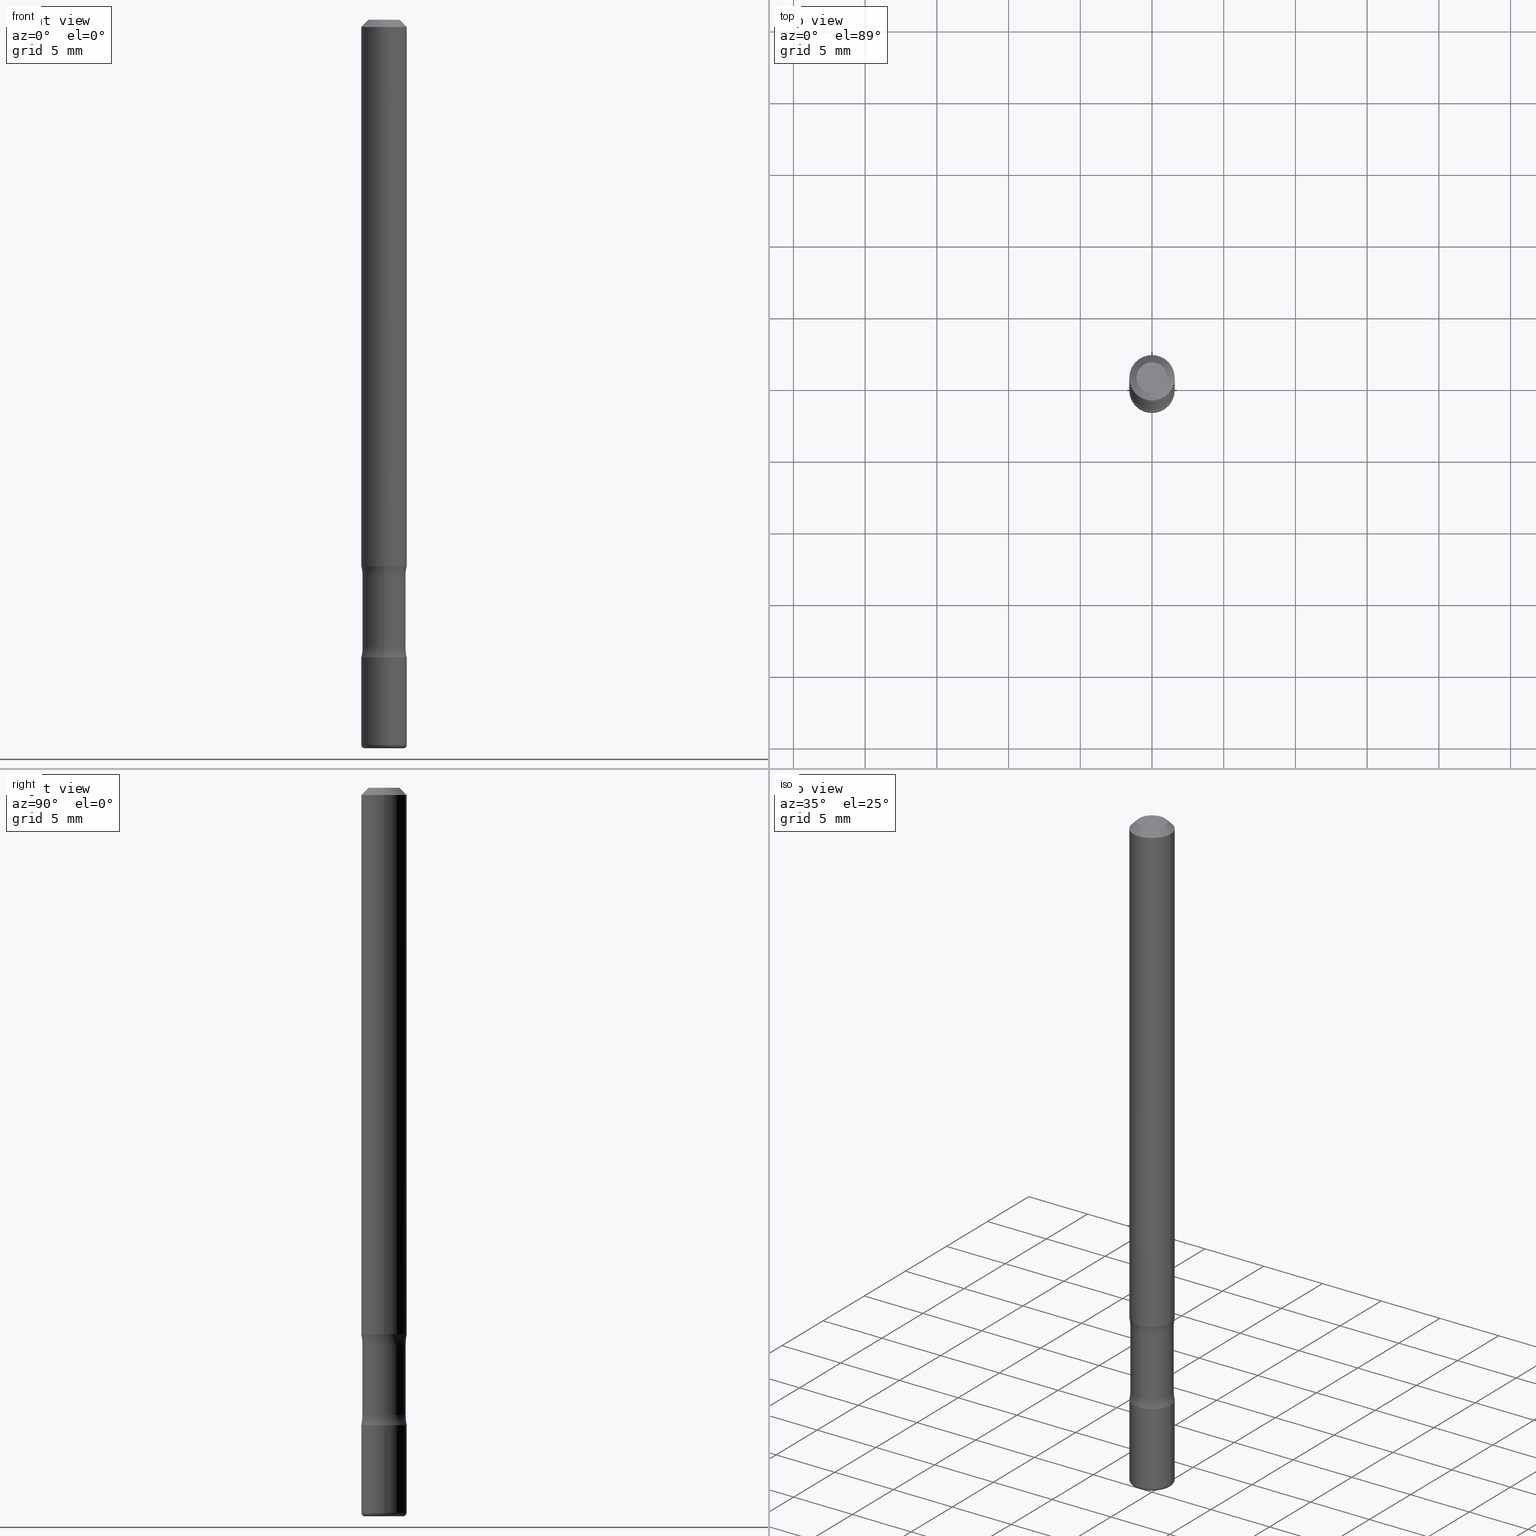
[diagram: canonical four-view strip — front | top / right | iso, engineering-drawing reading convention]
A machine part, canonical four-view strip (front | top / right | iso — engineering-drawing reading convention). The complete STEP part file that produces these views, byte-faithful:
ISO-10303-21;
HEADER;
FILE_DESCRIPTION (( 'STEP AP203' ),
    '1' );
FILE_NAME ('37990.STEP',
    '2024-03-02T02:09:02',
    ( '' ),
    ( '' ),
    'SwSTEP 2.0',
    'SolidWorks 2023',
    '' );
FILE_SCHEMA (( 'CONFIG_CONTROL_DESIGN' ));
ENDSEC;

DATA;
#1 = ORIENTED_EDGE ( 'NONE', *, *, #447, .T. ) ;
#2 = CARTESIAN_POINT ( 'NONE',  ( 2.967759138016698062E-16, 0.04250000000000050265, -1.761332880864881203E-16 ) ) ;
#3 = ORIENTED_EDGE ( 'NONE', *, *, #40, .T. ) ;
#4 = ADVANCED_FACE ( 'NONE', ( #370 ), #246, .F. ) ;
#5 = PERSON_AND_ORGANIZATION ( #188, #544 ) ;
#6 = ORIENTED_EDGE ( 'NONE', *, *, #367, .F. ) ;
#7 = EDGE_CURVE ( 'NONE', #475, #29, #316, .T. ) ;
#8 = LINE ( 'NONE', #176, #238 ) ;
#9 = AXIS2_PLACEMENT_3D ( 'NONE', #2, #512, #173 ) ;
#10 = DIRECTION ( 'NONE',  ( -6.982962677686265922E-15, -1.000000000000000000, 5.846345719468729014E-15 ) ) ;
#11 = DIRECTION ( 'NONE',  ( -2.445468806185136597E-29, 3.491481338843145583E-15, 1.000000000000000000 ) ) ;
#12 = EDGE_CURVE ( 'NONE', #294, #48, #262, .T. ) ;
#13 = EDGE_CURVE ( 'NONE', #41, #553, #463, .T. ) ;
#14 = LINE ( 'NONE', #351, #376 ) ;
#15 = CARTESIAN_POINT ( 'NONE',  ( 4.890937612370272073E-29, -6.982962677686288799E-15, -1.999999999999999334 ) ) ;
#16 = DIRECTION ( 'NONE',  ( 1.000000000000000000, 0.000000000000000000, 0.000000000000000000 ) ) ;
#17 = CARTESIAN_POINT ( 'NONE',  ( 0.06250000000000076328, -4.364351673553969942E-16, 3.047610484872497355E-30 ) ) ;
#18 = EDGE_CURVE ( 'NONE', #235, #419, #152, .T. ) ;
#19 = VERTEX_POINT ( 'NONE', #455 ) ;
#20 = DIRECTION ( 'NONE',  ( 6.982962677686266711E-15, 1.000000000000000000, -4.601007147224048087E-15 ) ) ;
#21 = PERSON_AND_ORGANIZATION ( #188, #544 ) ;
#22 = VERTEX_POINT ( 'NONE', #33 ) ;
#23 = DIRECTION ( 'NONE',  ( 8.010757980930134339E-30, -5.846345719468729014E-15, -1.000000000000000000 ) ) ;
#24 = ADVANCED_FACE ( 'NONE', ( #515 ), #184, .T. ) ;
#25 = EDGE_LOOP ( 'NONE', ( #282, #6 ) ) ;
#26 = CC_DESIGN_APPROVAL ( #63, ( #539 ) ) ;
#27 = CARTESIAN_POINT ( 'NONE',  ( 1.357006838635785746E-45, -1.937446121494581442E-31, -5.549066237130534971E-17 ) ) ;
#28 = EDGE_CURVE ( 'NONE', #405, #519, #35, .T. ) ;
#29 = VERTEX_POINT ( 'NONE', #372 ) ;
#30 = EDGE_LOOP ( 'NONE', ( #84, #331, #468, #496 ) ) ;
#31 = APPLICATION_CONTEXT ( 'configuration controlled 3d designs of mechanical parts and assemblies' ) ;
#32 = ORIENTED_EDGE ( 'NONE', *, *, #264, .T. ) ;
#33 = CARTESIAN_POINT ( 'NONE',  ( -0.06250000000000062450, -6.084980893786609222E-15, -1.749999999999999112 ) ) ;
#34 = CARTESIAN_POINT ( 'NONE',  ( 4.079301461300732393E-29, -4.648505913108318079E-15, -1.499999999999998668 ) ) ;
#35 = CIRCLE ( 'NONE', #364, 0.01000000000000085022 ) ;
#36 = VECTOR ( 'NONE', #411, 39.37007874015748143 ) ;
#37 = ORIENTED_EDGE ( 'NONE', *, *, #476, .T. ) ;
#38 = DIRECTION ( 'NONE',  ( 6.982962677686265922E-15, 1.000000000000000000, -5.846345719468729014E-15 ) ) ;
#39 = DATE_AND_TIME ( #302, #415 ) ;
#40 = EDGE_CURVE ( 'NONE', #508, #519, #170, .T. ) ;
#41 = VERTEX_POINT ( 'NONE', #506 ) ;
#42 = COORDINATED_UNIVERSAL_TIME_OFFSET ( 5, 0, .BEHIND. ) ;
#43 = ADVANCED_FACE ( 'NONE', ( #320 ), #241, .T. ) ;
#44 = FACE_OUTER_BOUND ( 'NONE', #335, .T. ) ;
#45 = AXIS2_PLACEMENT_3D ( 'NONE', #179, #488, #401 ) ;
#46 = LOCAL_TIME ( 21, 9, 2.000000000000000000, #224 ) ;
#47 = DIRECTION ( 'NONE',  ( 6.982962677686267499E-15, 1.000000000000000000, -4.370956789862777762E-15 ) ) ;
#48 = VERTEX_POINT ( 'NONE', #288 ) ;
#49 = DIRECTION ( 'NONE',  ( 0.000000000000000000, 0.000000000000000000, 1.000000000000000000 ) ) ;
#50 = ADVANCED_FACE ( 'NONE', ( #163 ), #253, .T. ) ;
#51 = FACE_OUTER_BOUND ( 'NONE', #546, .T. ) ;
#52 = DIRECTION ( 'NONE',  ( 1.000000000000000000, -6.982962677686266711E-15, 4.876176775795936353E-29 ) ) ;
#53 = CLOSED_SHELL ( 'NONE', ( #391, #4, #507, #461, #427, #200, #321, #495 ) ) ;
#54 = AXIS2_PLACEMENT_3D ( 'NONE', #283, #157, #325 ) ;
#55 = APPROVAL_PERSON_ORGANIZATION ( #21, #63, #106 ) ;
#56 = FACE_OUTER_BOUND ( 'NONE', #458, .T. ) ;
#57 = CYLINDRICAL_SURFACE ( 'NONE', #312, 0.05937499999999967110 ) ;
#58 = CARTESIAN_POINT ( 'NONE',  ( 0.06250000000000073552, -4.364351673553967477E-16, 3.047610484872495604E-30 ) ) ;
#59 = LOCAL_TIME ( 21, 9, 2.000000000000000000, #62 ) ;
#60 = CARTESIAN_POINT ( 'NONE',  ( 0.000000000000000000, 0.000000000000000000, 0.000000000000000000 ) ) ;
#61 = CARTESIAN_POINT ( 'NONE',  ( 4.079301461300732393E-29, -4.648505913108318079E-15, -1.499999999999998668 ) ) ;
#62 = COORDINATED_UNIVERSAL_TIME_OFFSET ( 5, 0, .BEHIND. ) ;
#63 = APPROVAL ( #494, 'UNSPECIFIED' ) ;
#64 = CIRCLE ( 'NONE', #199, 0.06250000000000090206 ) ;
#65 = ORIENTED_EDGE ( 'NONE', *, *, #160, .T. ) ;
#66 = CARTESIAN_POINT ( 'NONE',  ( -2.417785108228764368E-28, -4.861112258114085426E-14, -1.999999999999998890 ) ) ;
#67 = ORIENTED_EDGE ( 'NONE', *, *, #138, .F. ) ;
#68 = DIRECTION ( 'NONE',  ( 8.010757980930134339E-30, -5.846345719468729014E-15, -1.000000000000000000 ) ) ;
#69 = DIRECTION ( 'NONE',  ( 1.000000000000000000, -6.982962677686271444E-15, 0.000000000000000000 ) ) ;
#70 = LINE ( 'NONE', #17, #280 ) ;
#71 = DIRECTION ( 'NONE',  ( 8.010757980930134339E-30, -5.846345719468729014E-15, -1.000000000000000000 ) ) ;
#72 = EDGE_CURVE ( 'NONE', #453, #405, #510, .T. ) ;
#73 = AXIS2_PLACEMENT_3D ( 'NONE', #60, #11, #52 ) ;
#74 = ORIENTED_EDGE ( 'NONE', *, *, #328, .T. ) ;
#75 = VECTOR ( 'NONE', #257, 39.37007874015748143 ) ;
#76 = SECURITY_CLASSIFICATION ( '', '', #175 ) ;
#77 = ORIENTED_EDGE ( 'NONE', *, *, #7, .F. ) ;
#78 = DIRECTION ( 'NONE',  ( 6.982962677686265922E-15, 1.000000000000000000, -4.370956789862822727E-15 ) ) ;
#79 = SHAPE_DEFINITION_REPRESENTATION ( #290, #429 ) ;
#80 = LINE ( 'NONE', #334, #268 ) ;
#81 = CARTESIAN_POINT ( 'NONE',  ( -0.06250000000000111022, -6.503958654447783489E-15, -1.989999999999998215 ) ) ;
#82 = DIRECTION ( 'NONE',  ( 1.000000000000000000, -6.982962677686265922E-15, 4.876176775795935793E-29 ) ) ;
#83 = AXIS2_PLACEMENT_3D ( 'NONE', #15, #181, #342 ) ;
#84 = ORIENTED_EDGE ( 'NONE', *, *, #264, .F. ) ;
#85 = MANIFOLD_SOLID_BREP ( 'Body-Move/Copy2[4]', #53 ) ;
#86 = CARTESIAN_POINT ( 'NONE',  ( 1.357006838635785746E-45, -1.937446121494581442E-31, -5.549066237130534971E-17 ) ) ;
#87 = DIRECTION ( 'NONE',  ( -2.445468806185136597E-29, 3.491481338843145583E-15, 1.000000000000000000 ) ) ;
#88 = TOROIDAL_SURFACE ( 'NONE', #473, 0.05250000000000046296, 0.01000000000000085022 ) ;
#89 = AXIS2_PLACEMENT_3D ( 'NONE', #61, #346, #534 ) ;
#90 = CARTESIAN_POINT ( 'NONE',  ( 0.000000000000000000, 0.000000000000000000, 0.000000000000000000 ) ) ;
#91 = ADVANCED_FACE ( 'NONE', ( #212 ), #88, .T. ) ;
#92 = LINE ( 'NONE', #261, #123 ) ;
#93 = CYLINDRICAL_SURFACE ( 'NONE', #209, 0.06250000000000073552 ) ;
#94 = DIRECTION ( 'NONE',  ( 0.7071067811865471286, -7.319954787623254468E-15, -0.7071067811865479058 ) ) ;
#95 = PERSON_AND_ORGANIZATION_ROLE ( 'classification_officer' ) ;
#96 = DIRECTION ( 'NONE',  ( 8.010757980930134339E-30, -5.846345719468729014E-15, -1.000000000000000000 ) ) ;
#97 = CARTESIAN_POINT ( 'NONE',  ( -4.287811248606790116E-16, -0.06250000000000452416, -1.499999999999998446 ) ) ;
#98 = AXIS2_PLACEMENT_3D ( 'NONE', #108, #276, #69 ) ;
#99 = AXIS2_PLACEMENT_3D ( 'NONE', #90, #49, #16 ) ;
#100 = ORIENTED_EDGE ( 'NONE', *, *, #352, .F. ) ;
#101 = CLOSED_SHELL ( 'NONE', ( #355, #174, #182, #91, #207, #109 ) ) ;
#102 = AXIS2_PLACEMENT_3D ( 'NONE', #460, #71, #416 ) ;
#103 = ORIENTED_EDGE ( 'NONE', *, *, #314, .F. ) ;
#104 = DIRECTION ( 'NONE',  ( 6.982962677686265922E-15, 1.000000000000000000, -5.846345719468729014E-15 ) ) ;
#105 = CARTESIAN_POINT ( 'NONE',  ( 0.05250000000000046296, -7.349568218264821903E-15, -1.999999999999999334 ) ) ;
#106 = APPROVAL_ROLE ( '' ) ;
#107 = ORIENTED_EDGE ( 'NONE', *, *, #265, .F. ) ;
#108 = CARTESIAN_POINT ( 'NONE',  ( 4.279570410823987363E-29, -6.110092342975501516E-15, -1.749999999999999112 ) ) ;
#109 = ADVANCED_FACE ( 'NONE', ( #171 ), #322, .F. ) ;
#110 = CARTESIAN_POINT ( 'NONE',  ( -4.180615967391589820E-16, -0.05937500000000418832, -1.527775607554111792 ) ) ;
#111 = CARTESIAN_POINT ( 'NONE',  ( 4.101551828289662394E-29, -4.810891717437951800E-15, -1.527775607554112014 ) ) ;
#112 = AXIS2_PLACEMENT_3D ( 'NONE', #443, #145, #396 ) ;
#113 = ORIENTED_EDGE ( 'NONE', *, *, #408, .F. ) ;
#114 = DIRECTION ( 'NONE',  ( 1.000000000000000000, -6.982962677686270655E-15, 0.000000000000000000 ) ) ;
#115 = DATE_AND_TIME ( #511, #59 ) ;
#116 = CARTESIAN_POINT ( 'NONE',  ( 4.279570410823987363E-29, -6.110092342975501516E-15, -1.749999999999999112 ) ) ;
#117 = EDGE_LOOP ( 'NONE', ( #402, #231 ) ) ;
#118 = DIRECTION ( 'NONE',  ( -1.000000000000000000, 6.982962677686265922E-15, -4.883557194083113462E-29 ) ) ;
#119 = DIRECTION ( 'NONE',  ( -2.445468806185136877E-29, 3.491481338843145188E-15, 1.000000000000000000 ) ) ;
#120 = CARTESIAN_POINT ( 'NONE',  ( -1.264904318339082863E-15, -0.1843750000000058675, -1.722224392445883545 ) ) ;
#121 = ORIENTED_EDGE ( 'NONE', *, *, #279, .F. ) ;
#122 = AXIS2_PLACEMENT_3D ( 'NONE', #550, #466, #114 ) ;
#123 = VECTOR ( 'NONE', #311, 39.37007874015748143 ) ;
#124 = LOCAL_TIME ( 21, 9, 2.000000000000000000, #151 ) ;
#125 = ORIENTED_EDGE ( 'NONE', *, *, #13, .F. ) ;
#126 = DATE_AND_TIME ( #517, #124 ) ;
#127 = EDGE_LOOP ( 'NONE', ( #465, #542 ) ) ;
#128 = PERSON_AND_ORGANIZATION_ROLE ( 'design_supplier' ) ;
#129 = PERSON_AND_ORGANIZATION ( #188, #544 ) ;
#130 = AXIS2_PLACEMENT_3D ( 'NONE', #239, #271, #369 ) ;
#131 = CIRCLE ( 'NONE', #435, 0.1250000000000000000 ) ;
#132 = ORIENTED_EDGE ( 'NONE', *, *, #423, .F. ) ;
#133 = CARTESIAN_POINT ( 'NONE',  ( -4.073420686176375718E-16, -0.05937500000000724837, -1.999999999999998002 ) ) ;
#134 = DIRECTION ( 'NONE',  ( 1.000000000000000000, -6.982962677686270655E-15, 0.000000000000000000 ) ) ;
#135 = CARTESIAN_POINT ( 'NONE',  ( 4.257320043835055680E-29, -5.947706538645865427E-15, -1.722224392445885321 ) ) ;
#136 = COORDINATED_UNIVERSAL_TIME_OFFSET ( 5, 0, .BEHIND. ) ;
#137 = DIRECTION ( 'NONE',  ( -2.445468806185136877E-29, 3.491481338843145188E-15, 1.000000000000000000 ) ) ;
#138 = EDGE_CURVE ( 'NONE', #508, #291, #70, .T. ) ;
#139 = DIRECTION ( 'NONE',  ( -2.445468806185136597E-29, 3.491481338843145583E-15, 1.000000000000000000 ) ) ;
#140 = AXIS2_PLACEMENT_3D ( 'NONE', #554, #166, #198 ) ;
#141 = MECHANICAL_CONTEXT ( 'NONE', #31, 'mechanical' ) ;
#142 = PRODUCT ( '37990', '37990', '', ( #141 ) ) ;
#143 = CARTESIAN_POINT ( 'NONE',  ( -4.287811248606822657E-16, -0.06250000000000677236, -1.749999999999998890 ) ) ;
#144 = ORIENTED_EDGE ( 'NONE', *, *, #319, .F. ) ;
#145 = DIRECTION ( 'NONE',  ( -2.445468806185136597E-29, 3.491481338843145583E-15, 1.000000000000000000 ) ) ;
#146 = CARTESIAN_POINT ( 'NONE',  ( 4.866482924308417164E-29, -6.948047864297853205E-15, -1.989999999999998215 ) ) ;
#147 = APPROVAL_STATUS ( 'not_yet_approved' ) ;
#148 = PERSON_AND_ORGANIZATION_ROLE ( 'design_owner' ) ;
#149 = EDGE_LOOP ( 'NONE', ( #368, #154, #167, #121 ) ) ;
#150 = LINE ( 'NONE', #500, #36 ) ;
#151 = COORDINATED_UNIVERSAL_TIME_OFFSET ( 5, 0, .BEHIND. ) ;
#152 = CIRCLE ( 'NONE', #130, 0.06250000000000062450 ) ;
#153 = CIRCLE ( 'NONE', #83, 0.05250000000000046296 ) ;
#154 = ORIENTED_EDGE ( 'NONE', *, *, #193, .T. ) ;
#155 = DIRECTION ( 'NONE',  ( 2.445468806185136597E-29, -3.491481338843145583E-15, -1.000000000000000000 ) ) ;
#156 = DIRECTION ( 'NONE',  ( 2.438088387897960049E-29, -3.491481338843145188E-15, -1.000000000000000000 ) ) ;
#157 = DIRECTION ( 'NONE',  ( -2.445468806185136597E-29, 3.491481338843145583E-15, 1.000000000000000000 ) ) ;
#158 = ORIENTED_EDGE ( 'NONE', *, *, #408, .T. ) ;
#159 = DIRECTION ( 'NONE',  ( 7.105427357601001859E-15, 1.000000000000000000, -3.491481338843145583E-15 ) ) ;
#160 = EDGE_CURVE ( 'NONE', #379, #186, #218, .T. ) ;
#161 = EDGE_LOOP ( 'NONE', ( #77, #74, #381, #531 ) ) ;
#162 = CIRCLE ( 'NONE', #172, 0.1249999999999999584 ) ;
#163 = FACE_OUTER_BOUND ( 'NONE', #359, .T. ) ;
#164 = PLANE ( 'NONE',  #9 ) ;
#165 = ORIENTED_EDGE ( 'NONE', *, *, #541, .F. ) ;
#166 = DIRECTION ( 'NONE',  ( -2.445468806185136597E-29, 3.491481338843145583E-15, 1.000000000000000000 ) ) ;
#167 = ORIENTED_EDGE ( 'NONE', *, *, #536, .T. ) ;
#168 = CYLINDRICAL_SURFACE ( 'NONE', #522, 0.06250000000000076328 ) ;
#169 = ORIENTED_EDGE ( 'NONE', *, *, #72, .T. ) ;
#170 = CIRCLE ( 'NONE', #54, 0.06250000000000090206 ) ;
#171 = FACE_OUTER_BOUND ( 'NONE', #127, .T. ) ;
#172 = AXIS2_PLACEMENT_3D ( 'NONE', #400, #306, #225 ) ;
#173 = DIRECTION ( 'NONE',  ( -1.000000000000000000, 6.982962677686265922E-15, -4.876176775795935793E-29 ) ) ;
#174 = ADVANCED_FACE ( 'NONE', ( #51 ), #551, .T. ) ;
#175 = SECURITY_CLASSIFICATION_LEVEL ( 'unclassified' ) ;
#176 = CARTESIAN_POINT ( 'NONE',  ( -0.06250000000000073552, 4.440892098500678424E-16, -3.074334431409351847E-30 ) ) ;
#177 = AXIS2_PLACEMENT_3D ( 'NONE', #407, #244, #20 ) ;
#178 = CARTESIAN_POINT ( 'NONE',  ( 4.101551828289662394E-29, -4.810891717437951800E-15, -1.527775607554112014 ) ) ;
#179 = CARTESIAN_POINT ( 'NONE',  ( 3.668203209277701532E-29, -5.237222008264713444E-15, -1.499999999999998668 ) ) ;
#180 = CARTESIAN_POINT ( 'NONE',  ( 4.146134089876643393E-16, 0.05937499999999401590, -1.722224392445885544 ) ) ;
#181 = DIRECTION ( 'NONE',  ( -2.445468806185136597E-29, 3.491481338843145583E-15, 1.000000000000000000 ) ) ;
#182 = ADVANCED_FACE ( 'NONE', ( #353 ), #456, .T. ) ;
#183 = EDGE_CURVE ( 'NONE', #291, #22, #497, .T. ) ;
#184 = CONICAL_SURFACE ( 'NONE', #197, 0.06250000000000056899, 0.7853981633974477239 ) ;
#185 = CIRCLE ( 'NONE', #397, 0.05937499999999996253 ) ;
#186 = VERTEX_POINT ( 'NONE', #284 ) ;
#187 = FACE_OUTER_BOUND ( 'NONE', #161, .T. ) ;
#188 = PERSON ( 'UNSPECIFIED', 'UNSPECIFIED', 'UNSPECIFIED', ('UNSPECIFIED'), ('UNSPECIFIED'), ('UNSPECIFIED') ) ;
#189 = ORIENTED_EDGE ( 'NONE', *, *, #413, .F. ) ;
#190 = DIRECTION ( 'NONE',  ( -1.000000000000000000, 6.982962677686265922E-15, 0.000000000000000000 ) ) ;
#191 = AXIS2_PLACEMENT_3D ( 'NONE', #178, #96, #343 ) ;
#192 = DIRECTION ( 'NONE',  ( 8.010757980930134339E-30, -5.846345719468729014E-15, -1.000000000000000000 ) ) ;
#193 = EDGE_CURVE ( 'NONE', #235, #186, #492, .T. ) ;
#194 = ORIENTED_EDGE ( 'NONE', *, *, #28, .T. ) ;
#195 = CARTESIAN_POINT ( 'NONE',  ( 4.117655442741518235E-29, -4.787830424982076550E-15, -1.527775607554111570 ) ) ;
#196 = CARTESIAN_POINT ( 'NONE',  ( 4.890937612370306439E-31, -6.982962677686338448E-17, -0.02000000000000013572 ) ) ;
#197 = AXIS2_PLACEMENT_3D ( 'NONE', #196, #155, #190 ) ;
#198 = DIRECTION ( 'NONE',  ( 1.000000000000000000, -6.982962677686270655E-15, 0.000000000000000000 ) ) ;
#199 = AXIS2_PLACEMENT_3D ( 'NONE', #350, #486, #134 ) ;
#200 = ADVANCED_FACE ( 'NONE', ( #44 ), #256, .F. ) ;
#201 = CARTESIAN_POINT ( 'NONE',  ( 4.890937612370272073E-29, -6.982962677686288799E-15, -1.999999999999999334 ) ) ;
#202 = CARTESIAN_POINT ( 'NONE',  ( 0.000000000000000000, 0.000000000000000000, 0.000000000000000000 ) ) ;
#203 = EDGE_LOOP ( 'NONE', ( #3, #403, #481, #67 ) ) ;
#204 = APPROVAL_STATUS ( 'not_yet_approved' ) ;
#205 = CARTESIAN_POINT ( 'NONE',  ( 4.259337010429733699E-29, -5.944818127683673811E-15, -1.722224392445884655 ) ) ;
#206 = CARTESIAN_POINT ( 'NONE',  ( 4.866482924308417164E-29, -6.948047864297853205E-15, -1.989999999999998215 ) ) ;
#207 = ADVANCED_FACE ( 'NONE', ( #56 ), #220, .T. ) ;
#208 = AXIS2_PLACEMENT_3D ( 'NONE', #504, #459, #340 ) ;
#209 = AXIS2_PLACEMENT_3D ( 'NONE', #442, #87, #82 ) ;
#210 = PERSON_AND_ORGANIZATION_ROLE ( 'creator' ) ;
#211 = CARTESIAN_POINT ( 'NONE',  ( -1.264904318339080891E-15, -0.1843750000000042299, -1.527775607554110460 ) ) ;
#212 = FACE_OUTER_BOUND ( 'NONE', #450, .T. ) ;
#213 = CC_DESIGN_PERSON_AND_ORGANIZATION_ASSIGNMENT ( #480, #387, ( #524 ) ) ;
#214 = ADVANCED_FACE ( 'NONE', ( #258 ), #223, .F. ) ;
#215 = DATE_TIME_ROLE ( 'creation_date' ) ;
#216 = CARTESIAN_POINT ( 'NONE',  ( -6.403209434462905426E-29, -2.140844110749520751E-14, -1.749999999999998890 ) ) ;
#217 = DIRECTION ( 'NONE',  ( 8.010757980930134339E-30, -5.846345719468729014E-15, -1.000000000000000000 ) ) ;
#218 = CIRCLE ( 'NONE', #543, 0.05937499999999996253 ) ;
#219 = APPLICATION_CONTEXT ( 'configuration controlled 3d designs of mechanical parts and assemblies' ) ;
#220 = CYLINDRICAL_SURFACE ( 'NONE', #73, 0.06250000000000076328 ) ;
#221 = PERSON_AND_ORGANIZATION ( #188, #544 ) ;
#222 = DIRECTION ( 'NONE',  ( 6.982962677686265133E-15, 1.000000000000000000, -4.601007147224025211E-15 ) ) ;
#223 = PLANE ( 'NONE',  #45 ) ;
#224 = COORDINATED_UNIVERSAL_TIME_OFFSET ( 5, 0, .BEHIND. ) ;
#225 = DIRECTION ( 'NONE',  ( -6.982962677686265922E-15, -1.000000000000000000, 0.000000000000000000 ) ) ;
#226 = EDGE_CURVE ( 'NONE', #19, #454, #354, .T. ) ;
#227 = DIMENSIONAL_EXPONENTS ( 1.000000000000000000, 0.000000000000000000, 0.000000000000000000, 0.000000000000000000, 0.000000000000000000, 0.000000000000000000, 0.000000000000000000 ) ;
#228 = CIRCLE ( 'NONE', #430, 0.01000000000000085022 ) ;
#229 = EDGE_LOOP ( 'NONE', ( #243, #275 ) ) ;
#230 = APPROVAL ( #147, 'UNSPECIFIED' ) ;
#231 = ORIENTED_EDGE ( 'NONE', *, *, #349, .T. ) ;
#232 = DIRECTION ( 'NONE',  ( 8.010757980930134339E-30, -5.846345719468729014E-15, -1.000000000000000000 ) ) ;
#233 = ORIENTED_EDGE ( 'NONE', *, *, #297, .T. ) ;
#234 = DIRECTION ( 'NONE',  ( 6.982962677686265922E-15, 1.000000000000000000, -5.846345719468729014E-15 ) ) ;
#235 = VERTEX_POINT ( 'NONE', #143 ) ;
#236 = CARTESIAN_POINT ( 'NONE',  ( 4.259337010429733699E-29, -5.944818127683673811E-15, -1.722224392445884655 ) ) ;
#237 = AXIS2_PLACEMENT_3D ( 'NONE', #120, #521, #373 ) ;
#238 = VECTOR ( 'NONE', #137, 39.37007874015748143 ) ;
#239 = CARTESIAN_POINT ( 'NONE',  ( 4.279570410823986242E-29, -6.110092342975502304E-15, -1.749999999999999112 ) ) ;
#240 = ORIENTED_EDGE ( 'NONE', *, *, #249, .T. ) ;
#241 = CYLINDRICAL_SURFACE ( 'NONE', #345, 0.06250000000000073552 ) ;
#242 = DIRECTION ( 'NONE',  ( 1.000000000000000000, -6.982962677686271444E-15, 0.000000000000000000 ) ) ;
#243 = ORIENTED_EDGE ( 'NONE', *, *, #249, .F. ) ;
#244 = DIRECTION ( 'NONE',  ( 8.010757980930134339E-30, -5.846345719468729014E-15, -1.000000000000000000 ) ) ;
#245 = DIRECTION ( 'NONE',  ( 8.010757980930137142E-30, -5.846345719468729014E-15, -1.000000000000000000 ) ) ;
#246 = TOROIDAL_SURFACE ( 'NONE', #384, 0.1843749999999999278, 0.1249999999999999584 ) ;
#247 = ORIENTED_EDGE ( 'NONE', *, *, #352, .T. ) ;
#248 = AXIS2_PLACEMENT_3D ( 'NONE', #195, #332, #38 ) ;
#249 = EDGE_CURVE ( 'NONE', #48, #294, #303, .T. ) ;
#250 = ORIENTED_EDGE ( 'NONE', *, *, #160, .F. ) ;
#251 = EDGE_CURVE ( 'NONE', #553, #41, #64, .T. ) ;
#252 = ORIENTED_EDGE ( 'NONE', *, *, #349, .F. ) ;
#253 = CONICAL_SURFACE ( 'NONE', #338, 0.06250000000000056899, 0.7853981633974477239 ) ;
#254 =( GEOMETRIC_REPRESENTATION_CONTEXT ( 3 ) GLOBAL_UNCERTAINTY_ASSIGNED_CONTEXT ( ( #523 ) ) GLOBAL_UNIT_ASSIGNED_CONTEXT ( ( #348, #440, #484 ) ) REPRESENTATION_CONTEXT ( 'NONE', 'WORKASPACE' ) );
#255 = FACE_OUTER_BOUND ( 'NONE', #117, .T. ) ;
#256 = PLANE ( 'NONE',  #560 ) ;
#257 = DIRECTION ( 'NONE',  ( 8.010757980930134339E-30, -5.846345719468729014E-15, -1.000000000000000000 ) ) ;
#258 = FACE_OUTER_BOUND ( 'NONE', #371, .T. ) ;
#259 = CALENDAR_DATE ( 2024, 1, 3 ) ;
#260 = APPLICATION_PROTOCOL_DEFINITION ( 'international standard', 'config_control_design', 1994, #31 ) ;
#261 = CARTESIAN_POINT ( 'NONE',  ( 4.146134089876645858E-16, 0.05937499999999210076, -1.999999999999998668 ) ) ;
#262 = CIRCLE ( 'NONE', #395, 0.06249999999999997224 ) ;
#263 = CIRCLE ( 'NONE', #464, 0.06250000000000062450 ) ;
#264 = EDGE_CURVE ( 'NONE', #553, #19, #8, .T. ) ;
#265 = EDGE_CURVE ( 'NONE', #509, #454, #14, .T. ) ;
#266 = PRODUCT_RELATED_PRODUCT_CATEGORY ( 'detail', '', ( #142 ) ) ;
#267 = EDGE_LOOP ( 'NONE', ( #386, #100, #491, #65 ) ) ;
#268 = VECTOR ( 'NONE', #119, 39.37007874015748143 ) ;
#269 = DATE_AND_TIME ( #259, #46 ) ;
#270 = ORIENTED_EDGE ( 'NONE', *, *, #447, .F. ) ;
#271 = DIRECTION ( 'NONE',  ( 8.010757980930134339E-30, -5.846345719468729014E-15, -1.000000000000000000 ) ) ;
#272 = CARTESIAN_POINT ( 'NONE',  ( 0.06250000000000111022, -7.384483031653253552E-15, -1.989999999999998215 ) ) ;
#273 = MANIFOLD_SOLID_BREP ( 'Body-Move/Copy2[1]', #101 ) ;
#274 = CARTESIAN_POINT ( 'NONE',  ( 0.06250000000000056899, -4.986107516375879651E-16, -0.02000000000000013572 ) ) ;
#275 = ORIENTED_EDGE ( 'NONE', *, *, #12, .F. ) ;
#276 = DIRECTION ( 'NONE',  ( -2.445468806185136597E-29, 3.491481338843145583E-15, 1.000000000000000000 ) ) ;
#277 = CARTESIAN_POINT ( 'NONE',  ( 0.000000000000000000, 0.000000000000000000, 0.000000000000000000 ) ) ;
#278 = DIRECTION ( 'NONE',  ( -6.982962677686266711E-15, -1.000000000000000000, 3.491481338843145583E-15 ) ) ;
#279 = EDGE_CURVE ( 'NONE', #419, #379, #162, .T. ) ;
#280 = VECTOR ( 'NONE', #390, 39.37007874015748143 ) ;
#281 = AXIS2_PLACEMENT_3D ( 'NONE', #27, #365, #516 ) ;
#282 = ORIENTED_EDGE ( 'NONE', *, *, #72, .F. ) ;
#283 = CARTESIAN_POINT ( 'NONE',  ( 4.866482924308417164E-29, -6.948047864297853205E-15, -1.989999999999998215 ) ) ;
#284 = CARTESIAN_POINT ( 'NONE',  ( -4.180615967391622360E-16, -0.05937500000000592304, -1.722224392445884877 ) ) ;
#285 = APPROVAL_DATE_TIME ( #115, #230 ) ;
#286 = FACE_OUTER_BOUND ( 'NONE', #267, .T. ) ;
#287 = DIRECTION ( 'NONE',  ( -6.982962677686265922E-15, -1.000000000000000000, 0.000000000000000000 ) ) ;
#288 = CARTESIAN_POINT ( 'NONE',  ( 4.364351673554319013E-16, 0.06249999999999526074, -1.499999999999999112 ) ) ;
#289 = DIRECTION ( 'NONE',  ( -1.000000000000000000, 6.982962677686265922E-15, 0.000000000000000000 ) ) ;
#290 = PRODUCT_DEFINITION_SHAPE ( 'NONE', 'NONE',  #539 ) ;
#291 = VERTEX_POINT ( 'NONE', #490 ) ;
#292 = DIRECTION ( 'NONE',  ( -2.445468806185136597E-29, 3.491481338843145583E-15, 1.000000000000000000 ) ) ;
#293 = AXIS2_PLACEMENT_3D ( 'NONE', #66, #156, #503 ) ;
#294 = VERTEX_POINT ( 'NONE', #97 ) ;
#295 = ORIENTED_EDGE ( 'NONE', *, *, #28, .F. ) ;
#296 = APPROVAL_ROLE ( '' ) ;
#297 = EDGE_CURVE ( 'NONE', #29, #379, #92, .T. ) ;
#298 = DATE_AND_TIME ( #383, #485 ) ;
#299 = DIRECTION ( 'NONE',  ( 1.000000000000000000, -6.860497997771530774E-15, 4.811960108362550720E-29 ) ) ;
#300 = ORIENTED_EDGE ( 'NONE', *, *, #476, .F. ) ;
#301 = DIRECTION ( 'NONE',  ( -2.445468806185136877E-29, 3.491481338843145188E-15, 1.000000000000000000 ) ) ;
#302 = CALENDAR_DATE ( 2024, 1, 3 ) ;
#303 = CIRCLE ( 'NONE', #89, 0.06249999999999997224 ) ;
#304 = APPROVAL_DATE_TIME ( #126, #63 ) ;
#305 = FACE_OUTER_BOUND ( 'NONE', #30, .T. ) ;
#306 = DIRECTION ( 'NONE',  ( -1.000000000000000000, 6.982962677686265922E-15, -4.883557194083113462E-29 ) ) ;
#307 = CC_DESIGN_PERSON_AND_ORGANIZATION_ASSIGNMENT ( #5, #128, ( #524 ) ) ;
#308 = ORIENTED_EDGE ( 'NONE', *, *, #413, .T. ) ;
#309 = ADVANCED_FACE ( 'NONE', ( #255 ), #164, .F. ) ;
#310 = DIRECTION ( 'NONE',  ( 6.982962677686266711E-15, 1.000000000000000000, -4.601007147224048087E-15 ) ) ;
#311 = DIRECTION ( 'NONE',  ( 8.010757980930134339E-30, -5.846345719468729014E-15, -1.000000000000000000 ) ) ;
#312 = AXIS2_PLACEMENT_3D ( 'NONE', #399, #217, #310 ) ;
#313 = CC_DESIGN_APPROVAL ( #433, ( #524 ) ) ;
#314 = EDGE_CURVE ( 'NONE', #519, #508, #347, .T. ) ;
#315 = DIRECTION ( 'NONE',  ( 1.000000000000000000, -6.982962677686271444E-15, 4.883557194083114583E-29 ) ) ;
#316 = CIRCLE ( 'NONE', #434, 0.05937499999999937272 ) ;
#317 = AXIS2_PLACEMENT_3D ( 'NONE', #469, #245, #234 ) ;
#318 = ORIENTED_EDGE ( 'NONE', *, *, #314, .T. ) ;
#319 = EDGE_CURVE ( 'NONE', #22, #291, #446, .T. ) ;
#320 = FACE_OUTER_BOUND ( 'NONE', #527, .T. ) ;
#321 = ADVANCED_FACE ( 'NONE', ( #286 ), #540, .F. ) ;
#322 = PLANE ( 'NONE',  #208 ) ;
#323 = ORIENTED_EDGE ( 'NONE', *, *, #297, .F. ) ;
#324 = CC_DESIGN_DATE_AND_TIME_ASSIGNMENT ( #269, #449, ( #76 ) ) ;
#325 = DIRECTION ( 'NONE',  ( 1.000000000000000000, -6.982962677686270655E-15, 0.000000000000000000 ) ) ;
#326 = ORIENTED_EDGE ( 'NONE', *, *, #251, .F. ) ;
#327 = DIRECTION ( 'NONE',  ( -1.000000000000000000, 7.105427357601001859E-15, 0.000000000000000000 ) ) ;
#328 = EDGE_CURVE ( 'NONE', #475, #294, #483, .T. ) ;
#329 = AXIS2_PLACEMENT_3D ( 'NONE', #201, #292, #418 ) ;
#330 = AXIS2_PLACEMENT_3D ( 'NONE', #439, #392, #487 ) ;
#331 = ORIENTED_EDGE ( 'NONE', *, *, #251, .T. ) ;
#332 = DIRECTION ( 'NONE',  ( 8.010757980930134339E-30, -5.846345719468729014E-15, -1.000000000000000000 ) ) ;
#333 = CC_DESIGN_PERSON_AND_ORGANIZATION_ASSIGNMENT ( #129, #95, ( #76 ) ) ;
#334 = CARTESIAN_POINT ( 'NONE',  ( -0.06250000000000076328, 4.440892098500680396E-16, -3.074334431409353598E-30 ) ) ;
#335 = EDGE_LOOP ( 'NONE', ( #247, #501 ) ) ;
#336 = ORIENTED_EDGE ( 'NONE', *, *, #265, .T. ) ;
#337 = PERSON_AND_ORGANIZATION ( #188, #544 ) ;
#338 = AXIS2_PLACEMENT_3D ( 'NONE', #549, #425, #289 ) ;
#339 = DIRECTION ( 'NONE',  ( 1.000000000000000000, -6.982962677686266711E-15, 4.876176775795936353E-29 ) ) ;
#340 = DIRECTION ( 'NONE',  ( -1.000000000000000000, 6.982962677686265922E-15, -4.876176775795935793E-29 ) ) ;
#341 = PERSON_AND_ORGANIZATION ( #188, #544 ) ;
#342 = DIRECTION ( 'NONE',  ( 1.000000000000000000, -6.982962677686261977E-15, 0.000000000000000000 ) ) ;
#343 = DIRECTION ( 'NONE',  ( 6.982962677686266711E-15, 1.000000000000000000, -4.601007147224070964E-15 ) ) ;
#344 = FACE_OUTER_BOUND ( 'NONE', #537, .T. ) ;
#345 = AXIS2_PLACEMENT_3D ( 'NONE', #277, #502, #422 ) ;
#346 = DIRECTION ( 'NONE',  ( 8.010757980930134339E-30, -5.846345719468729014E-15, -1.000000000000000000 ) ) ;
#347 = CIRCLE ( 'NONE', #140, 0.06250000000000090206 ) ;
#348 =( CONVERSION_BASED_UNIT ( 'INCH', #438 ) LENGTH_UNIT ( ) NAMED_UNIT ( #227 ) );
#349 = EDGE_CURVE ( 'NONE', #509, #437, #385, .T. ) ;
#350 = CARTESIAN_POINT ( 'NONE',  ( 3.668203209277701532E-29, -5.237222008264713444E-15, -1.499999999999998668 ) ) ;
#351 = CARTESIAN_POINT ( 'NONE',  ( 0.06250000000000056899, -4.986107516375879651E-16, -0.02000000000000013572 ) ) ;
#352 = EDGE_CURVE ( 'NONE', #419, #235, #263, .T. ) ;
#353 = FACE_OUTER_BOUND ( 'NONE', #25, .T. ) ;
#354 = CIRCLE ( 'NONE', #112, 0.06250000000000056899 ) ;
#355 = ADVANCED_FACE ( 'NONE', ( #467 ), #168, .T. ) ;
#356 = TOROIDAL_SURFACE ( 'NONE', #102, 0.1843749999999994560, 0.1250000000000000000 ) ;
#357 = CC_DESIGN_SECURITY_CLASSIFICATION ( #76, ( #524 ) ) ;
#358 = PERSON_AND_ORGANIZATION ( #188, #544 ) ;
#359 = EDGE_LOOP ( 'NONE', ( #107, #132, #1, #462 ) ) ;
#360 = CARTESIAN_POINT ( 'NONE',  ( -0.04250000000000050265, 3.316907271901009129E-16, -5.549066237130754373E-17 ) ) ;
#361 = EDGE_CURVE ( 'NONE', #519, #22, #80, .T. ) ;
#362 = EDGE_LOOP ( 'NONE', ( #252, #336, #158, #270 ) ) ;
#363 = DIRECTION ( 'NONE',  ( 6.982962677686266711E-15, 1.000000000000000000, -4.601007147224070964E-15 ) ) ;
#364 = AXIS2_PLACEMENT_3D ( 'NONE', #547, #159, #327 ) ;
#365 = DIRECTION ( 'NONE',  ( -2.445468806185136597E-29, 3.491481338843145583E-15, 1.000000000000000000 ) ) ;
#366 = VECTOR ( 'NONE', #301, 39.37007874015748143 ) ;
#367 = EDGE_CURVE ( 'NONE', #405, #453, #153, .T. ) ;
#368 = ORIENTED_EDGE ( 'NONE', *, *, #18, .F. ) ;
#369 = DIRECTION ( 'NONE',  ( 6.982962677686267499E-15, 1.000000000000000000, -4.370956789862777762E-15 ) ) ;
#370 = FACE_OUTER_BOUND ( 'NONE', #149, .T. ) ;
#371 = EDGE_LOOP ( 'NONE', ( #125, #326 ) ) ;
#372 = CARTESIAN_POINT ( 'NONE',  ( 4.146134089876587187E-16, 0.05937499999999455713, -1.527775607554112458 ) ) ;
#373 = DIRECTION ( 'NONE',  ( 6.860497997771531562E-15, 1.000000000000000000, 0.000000000000000000 ) ) ;
#374 = CC_DESIGN_PERSON_AND_ORGANIZATION_ASSIGNMENT ( #358, #148, ( #142 ) ) ;
#375 = CLOSED_SHELL ( 'NONE', ( #43, #24, #50, #309, #214, #421 ) ) ;
#376 = VECTOR ( 'NONE', #94, 39.37007874015748143 ) ;
#377 = CARTESIAN_POINT ( 'NONE',  ( 4.279570410823986242E-29, -6.110092342975502304E-15, -1.749999999999999112 ) ) ;
#378 = ORIENTED_EDGE ( 'NONE', *, *, #541, .T. ) ;
#379 = VERTEX_POINT ( 'NONE', #180 ) ;
#380 = DIRECTION ( 'NONE',  ( 8.010757980930134339E-30, -5.846345719468729014E-15, -1.000000000000000000 ) ) ;
#381 = ORIENTED_EDGE ( 'NONE', *, *, #12, .T. ) ;
#382 = DIRECTION ( 'NONE',  ( -2.445468806185136597E-29, 3.491481338843145583E-15, 1.000000000000000000 ) ) ;
#383 = CALENDAR_DATE ( 2024, 1, 3 ) ;
#384 = AXIS2_PLACEMENT_3D ( 'NONE', #236, #23, #104 ) ;
#385 = CIRCLE ( 'NONE', #493, 0.04250000000000050265 ) ;
#386 = ORIENTED_EDGE ( 'NONE', *, *, #193, .F. ) ;
#387 = PERSON_AND_ORGANIZATION_ROLE ( 'creator' ) ;
#388 = DIRECTION ( 'NONE',  ( 1.000000000000000000, -6.982962677686266711E-15, 4.870577812114026993E-29 ) ) ;
#389 = ORIENTED_EDGE ( 'NONE', *, *, #520, .F. ) ;
#390 = DIRECTION ( 'NONE',  ( -2.445468806185136877E-29, 3.491481338843145188E-15, 1.000000000000000000 ) ) ;
#391 = ADVANCED_FACE ( 'NONE', ( #444 ), #57, .T. ) ;
#392 = DIRECTION ( 'NONE',  ( -2.445468806185136597E-29, 3.491481338843145583E-15, 1.000000000000000000 ) ) ;
#393 = DIRECTION ( 'NONE',  ( -8.010757980930137142E-30, 5.846345719468729014E-15, 1.000000000000000000 ) ) ;
#394 = CARTESIAN_POINT ( 'NONE',  ( 4.364351673554390997E-16, 0.06249999999999455297, -1.749999999999999334 ) ) ;
#395 = AXIS2_PLACEMENT_3D ( 'NONE', #34, #192, #78 ) ;
#396 = DIRECTION ( 'NONE',  ( 1.000000000000000000, -6.982962677686265922E-15, 0.000000000000000000 ) ) ;
#397 = AXIS2_PLACEMENT_3D ( 'NONE', #489, #482, #222 ) ;
#398 = APPROVAL_PERSON_ORGANIZATION ( #341, #433, #296 ) ;
#399 = CARTESIAN_POINT ( 'NONE',  ( 4.479839360347238409E-29, -7.571678772842681008E-15, -1.999999999999998446 ) ) ;
#400 = CARTESIAN_POINT ( 'NONE',  ( 1.287483743698447629E-15, 0.1843749999999939881, -1.722224392445885766 ) ) ;
#401 = DIRECTION ( 'NONE',  ( 1.000000000000000000, -6.982962677686265922E-15, 4.876176775795935793E-29 ) ) ;
#402 = ORIENTED_EDGE ( 'NONE', *, *, #423, .T. ) ;
#403 = ORIENTED_EDGE ( 'NONE', *, *, #361, .T. ) ;
#404 = AXIS2_PLACEMENT_3D ( 'NONE', #116, #526, #242 ) ;
#405 = VERTEX_POINT ( 'NONE', #538 ) ;
#406 = EDGE_LOOP ( 'NONE', ( #432, #165, #513, #240 ) ) ;
#407 = CARTESIAN_POINT ( 'NONE',  ( 4.479839360347238409E-29, -7.571678772842681008E-15, -1.999999999999998446 ) ) ;
#408 = EDGE_CURVE ( 'NONE', #454, #19, #552, .T. ) ;
#409 = APPLICATION_PROTOCOL_DEFINITION ( 'international standard', 'config_control_design', 1994, #219 ) ;
#410 = ORIENTED_EDGE ( 'NONE', *, *, #13, .T. ) ;
#411 = DIRECTION ( 'NONE',  ( -0.7071067811865471286, 2.468850131082252722E-15, -0.7071067811865479058 ) ) ;
#412 = CC_DESIGN_DATE_AND_TIME_ASSIGNMENT ( #39, #215, ( #539 ) ) ;
#413 = EDGE_CURVE ( 'NONE', #475, #186, #533, .T. ) ;
#414 = ORIENTED_EDGE ( 'NONE', *, *, #536, .F. ) ;
#415 = LOCAL_TIME ( 21, 9, 2.000000000000000000, #136 ) ;
#416 = DIRECTION ( 'NONE',  ( 6.982962677686265922E-15, 1.000000000000000000, -5.846345719468729014E-15 ) ) ;
#417 = APPROVAL_PERSON_ORGANIZATION ( #221, #230, #448 ) ;
#418 = DIRECTION ( 'NONE',  ( 1.000000000000000000, -6.982962677686261977E-15, 0.000000000000000000 ) ) ;
#419 = VERTEX_POINT ( 'NONE', #394 ) ;
#420 = ORIENTED_EDGE ( 'NONE', *, *, #7, .T. ) ;
#421 = ADVANCED_FACE ( 'NONE', ( #305 ), #93, .T. ) ;
#422 = DIRECTION ( 'NONE',  ( 1.000000000000000000, -6.982962677686265922E-15, 4.876176775795935793E-29 ) ) ;
#423 = EDGE_CURVE ( 'NONE', #437, #509, #452, .T. ) ;
#424 = FACE_OUTER_BOUND ( 'NONE', #229, .T. ) ;
#425 = DIRECTION ( 'NONE',  ( 2.445468806185136597E-29, -3.491481338843145583E-15, -1.000000000000000000 ) ) ;
#426 = DIRECTION ( 'NONE',  ( 6.860497997771530774E-15, 1.000000000000000000, 0.000000000000000000 ) ) ;
#427 = ADVANCED_FACE ( 'NONE', ( #424 ), #545, .F. ) ;
#428 = AXIS2_PLACEMENT_3D ( 'NONE', #146, #139, #315 ) ;
#429 = ADVANCED_BREP_SHAPE_REPRESENTATION ( '37990', ( #273, #472, #85, #99 ), #254 ) ;
#430 = AXIS2_PLACEMENT_3D ( 'NONE', #548, #278, #478 ) ;
#431 = ORIENTED_EDGE ( 'NONE', *, *, #40, .F. ) ;
#432 = ORIENTED_EDGE ( 'NONE', *, *, #328, .F. ) ;
#433 = APPROVAL ( #204, 'UNSPECIFIED' ) ;
#434 = AXIS2_PLACEMENT_3D ( 'NONE', #111, #68, #363 ) ;
#435 = AXIS2_PLACEMENT_3D ( 'NONE', #471, #118, #287 ) ;
#436 = DIRECTION ( 'NONE',  ( 8.010757980930134339E-30, -5.846345719468729014E-15, -1.000000000000000000 ) ) ;
#437 = VERTEX_POINT ( 'NONE', #360 ) ;
#438 = LENGTH_MEASURE_WITH_UNIT ( LENGTH_MEASURE( 0.02539999999999999897 ), #528 );
#439 = CARTESIAN_POINT ( 'NONE',  ( 4.890937612370306439E-31, -6.982962677686338448E-17, -0.02000000000000013572 ) ) ;
#440 =( NAMED_UNIT ( * ) PLANE_ANGLE_UNIT ( ) SI_UNIT ( $, .RADIAN. ) );
#441 = DIRECTION ( 'NONE',  ( 6.982962677686265133E-15, 1.000000000000000000, -4.601007147224025211E-15 ) ) ;
#442 = CARTESIAN_POINT ( 'NONE',  ( 0.000000000000000000, 0.000000000000000000, 0.000000000000000000 ) ) ;
#443 = CARTESIAN_POINT ( 'NONE',  ( 4.890937612370306439E-31, -6.982962677686338448E-17, -0.02000000000000013572 ) ) ;
#444 = FACE_OUTER_BOUND ( 'NONE', #557, .T. ) ;
#445 = AXIS2_PLACEMENT_3D ( 'NONE', #205, #380, #556 ) ;
#446 = CIRCLE ( 'NONE', #404, 0.06250000000000062450 ) ;
#447 = EDGE_CURVE ( 'NONE', #437, #19, #150, .T. ) ;
#448 = APPROVAL_ROLE ( '' ) ;
#449 = DATE_TIME_ROLE ( 'classification_date' ) ;
#450 = EDGE_LOOP ( 'NONE', ( #295, #505, #37, #103 ) ) ;
#451 = ORIENTED_EDGE ( 'NONE', *, *, #361, .F. ) ;
#452 = CIRCLE ( 'NONE', #281, 0.04250000000000050265 ) ;
#453 = VERTEX_POINT ( 'NONE', #105 ) ;
#454 = VERTEX_POINT ( 'NONE', #274 ) ;
#455 = CARTESIAN_POINT ( 'NONE',  ( -0.06250000000000056899, 3.666055405785322169E-16, -0.02000000000000013572 ) ) ;
#456 = PLANE ( 'NONE',  #293 ) ;
#457 = FACE_OUTER_BOUND ( 'NONE', #406, .T. ) ;
#458 = EDGE_LOOP ( 'NONE', ( #451, #318, #555, #144 ) ) ;
#459 = DIRECTION ( 'NONE',  ( 2.438088387897960049E-29, -3.491481338843145188E-15, -1.000000000000000000 ) ) ;
#460 = CARTESIAN_POINT ( 'NONE',  ( 4.117655442741518235E-29, -4.787830424982076550E-15, -1.527775607554111570 ) ) ;
#461 = ADVANCED_FACE ( 'NONE', ( #457 ), #356, .F. ) ;
#462 = ORIENTED_EDGE ( 'NONE', *, *, #226, .T. ) ;
#463 = CIRCLE ( 'NONE', #122, 0.06250000000000090206 ) ;
#464 = AXIS2_PLACEMENT_3D ( 'NONE', #377, #436, #47 ) ;
#465 = ORIENTED_EDGE ( 'NONE', *, *, #183, .T. ) ;
#466 = DIRECTION ( 'NONE',  ( -2.445468806185136597E-29, 3.491481338843145583E-15, 1.000000000000000000 ) ) ;
#467 = FACE_OUTER_BOUND ( 'NONE', #203, .T. ) ;
#468 = ORIENTED_EDGE ( 'NONE', *, *, #520, .T. ) ;
#469 = CARTESIAN_POINT ( 'NONE',  ( 3.668203209277701532E-29, -5.237222008264713444E-15, -1.499999999999998668 ) ) ;
#470 = DIRECTION ( 'NONE',  ( -2.445468806185136597E-29, 3.491481338843145583E-15, 1.000000000000000000 ) ) ;
#471 = CARTESIAN_POINT ( 'NONE',  ( 1.287483743698442698E-15, 0.1843749999999946820, -1.527775607554112680 ) ) ;
#472 = MANIFOLD_SOLID_BREP ( 'Body-Move/Copy2[2]', #375 ) ;
#473 = AXIS2_PLACEMENT_3D ( 'NONE', #206, #382, #559 ) ;
#474 = TOROIDAL_SURFACE ( 'NONE', #248, 0.1843749999999994560, 0.1250000000000000000 ) ;
#475 = VERTEX_POINT ( 'NONE', #110 ) ;
#476 = EDGE_CURVE ( 'NONE', #453, #508, #228, .T. ) ;
#477 = CARTESIAN_POINT ( 'NONE',  ( -0.06250000000000090206, -2.209436607670712344E-15, -1.499999999999998668 ) ) ;
#478 = DIRECTION ( 'NONE',  ( 1.000000000000000000, -6.982962677686224112E-15, 0.000000000000000000 ) ) ;
#479 = DESIGN_CONTEXT ( 'detailed design', #219, 'design' ) ;
#480 = PERSON_AND_ORGANIZATION ( #188, #544 ) ;
#481 = ORIENTED_EDGE ( 'NONE', *, *, #183, .F. ) ;
#482 = DIRECTION ( 'NONE',  ( 8.010757980930134339E-30, -5.846345719468729014E-15, -1.000000000000000000 ) ) ;
#483 = CIRCLE ( 'NONE', #532, 0.1250000000000000000 ) ;
#484 =( NAMED_UNIT ( * ) SI_UNIT ( $, .STERADIAN. ) SOLID_ANGLE_UNIT ( ) );
#485 = LOCAL_TIME ( 21, 9, 2.000000000000000000, #42 ) ;
#486 = DIRECTION ( 'NONE',  ( -2.445468806185136597E-29, 3.491481338843145583E-15, 1.000000000000000000 ) ) ;
#487 = DIRECTION ( 'NONE',  ( 1.000000000000000000, -6.982962677686265922E-15, 0.000000000000000000 ) ) ;
#488 = DIRECTION ( 'NONE',  ( -2.438088387897960049E-29, 3.491481338843145188E-15, 1.000000000000000000 ) ) ;
#489 = CARTESIAN_POINT ( 'NONE',  ( 4.257320043835055680E-29, -5.947706538645865427E-15, -1.722224392445885321 ) ) ;
#490 = CARTESIAN_POINT ( 'NONE',  ( 0.06250000000000062450, -6.546527510330897918E-15, -1.749999999999999112 ) ) ;
#491 = ORIENTED_EDGE ( 'NONE', *, *, #279, .T. ) ;
#492 = CIRCLE ( 'NONE', #237, 0.1249999999999999584 ) ;
#493 = AXIS2_PLACEMENT_3D ( 'NONE', #86, #525, #388 ) ;
#494 = APPROVAL_STATUS ( 'not_yet_approved' ) ;
#495 = ADVANCED_FACE ( 'NONE', ( #344 ), #558, .T. ) ;
#496 = ORIENTED_EDGE ( 'NONE', *, *, #226, .F. ) ;
#497 = CIRCLE ( 'NONE', #98, 0.06250000000000062450 ) ;
#498 = CIRCLE ( 'NONE', #191, 0.05937499999999937272 ) ;
#499 = CC_DESIGN_APPROVAL ( #230, ( #76 ) ) ;
#500 = CARTESIAN_POINT ( 'NONE',  ( -0.06250000000000056899, 3.666055405785322169E-16, -0.02000000000000013572 ) ) ;
#501 = ORIENTED_EDGE ( 'NONE', *, *, #18, .T. ) ;
#502 = DIRECTION ( 'NONE',  ( -2.445468806185136597E-29, 3.491481338843145583E-15, 1.000000000000000000 ) ) ;
#503 = DIRECTION ( 'NONE',  ( -1.000000000000000000, 6.982962677686265922E-15, -4.876176775795935793E-29 ) ) ;
#504 = CARTESIAN_POINT ( 'NONE',  ( -6.403209434462905426E-29, -2.140844110749520751E-14, -1.749999999999998890 ) ) ;
#505 = ORIENTED_EDGE ( 'NONE', *, *, #367, .T. ) ;
#506 = CARTESIAN_POINT ( 'NONE',  ( 0.06250000000000090206, -5.673657175620112213E-15, -1.499999999999998668 ) ) ;
#507 = ADVANCED_FACE ( 'NONE', ( #187 ), #474, .F. ) ;
#508 = VERTEX_POINT ( 'NONE', #272 ) ;
#509 = VERTEX_POINT ( 'NONE', #514 ) ;
#510 = CIRCLE ( 'NONE', #329, 0.05250000000000046296 ) ;
#511 = CALENDAR_DATE ( 2024, 1, 3 ) ;
#512 = DIRECTION ( 'NONE',  ( 2.438088387897960049E-29, -3.491481338843145188E-15, -1.000000000000000000 ) ) ;
#513 = ORIENTED_EDGE ( 'NONE', *, *, #518, .T. ) ;
#514 = CARTESIAN_POINT ( 'NONE',  ( 0.04250000000000050265, -3.950909582714408367E-16, -5.549066237130292766E-17 ) ) ;
#515 = FACE_OUTER_BOUND ( 'NONE', #362, .T. ) ;
#516 = DIRECTION ( 'NONE',  ( 1.000000000000000000, -6.982962677686266711E-15, 4.870577812114026993E-29 ) ) ;
#517 = CALENDAR_DATE ( 2024, 1, 3 ) ;
#518 = EDGE_CURVE ( 'NONE', #29, #48, #131, .T. ) ;
#519 = VERTEX_POINT ( 'NONE', #81 ) ;
#520 = EDGE_CURVE ( 'NONE', #41, #454, #535, .T. ) ;
#521 = DIRECTION ( 'NONE',  ( 1.000000000000000000, -6.860497997771530774E-15, 4.811960108362550720E-29 ) ) ;
#522 = AXIS2_PLACEMENT_3D ( 'NONE', #202, #470, #339 ) ;
#523 = UNCERTAINTY_MEASURE_WITH_UNIT (LENGTH_MEASURE( 1.000000000000000082E-05 ), #348, 'distance_accuracy_value', 'NONE');
#524 = PRODUCT_DEFINITION_FORMATION_WITH_SPECIFIED_SOURCE ( 'ANY', '', #142, .NOT_KNOWN. ) ;
#525 = DIRECTION ( 'NONE',  ( -2.445468806185136597E-29, 3.491481338843145583E-15, 1.000000000000000000 ) ) ;
#526 = DIRECTION ( 'NONE',  ( -2.445468806185136597E-29, 3.491481338843145583E-15, 1.000000000000000000 ) ) ;
#527 = EDGE_LOOP ( 'NONE', ( #410, #32, #113, #389 ) ) ;
#528 =( LENGTH_UNIT ( ) NAMED_UNIT ( * ) SI_UNIT ( $, .METRE. ) );
#529 = CC_DESIGN_PERSON_AND_ORGANIZATION_ASSIGNMENT ( #337, #210, ( #539 ) ) ;
#530 = APPROVAL_DATE_TIME ( #298, #433 ) ;
#531 = ORIENTED_EDGE ( 'NONE', *, *, #518, .F. ) ;
#532 = AXIS2_PLACEMENT_3D ( 'NONE', #211, #299, #426 ) ;
#533 = LINE ( 'NONE', #133, #75 ) ;
#534 = DIRECTION ( 'NONE',  ( 6.982962677686265922E-15, 1.000000000000000000, -4.370956789862822727E-15 ) ) ;
#535 = LINE ( 'NONE', #58, #366 ) ;
#536 = EDGE_CURVE ( 'NONE', #186, #379, #185, .T. ) ;
#537 = EDGE_LOOP ( 'NONE', ( #189, #420, #233, #414 ) ) ;
#538 = CARTESIAN_POINT ( 'NONE',  ( -0.05250000000000046296, -6.556943197930007510E-15, -1.999999999999999334 ) ) ;
#539 = PRODUCT_DEFINITION ( 'UNKNOWN', '', #524, #479 ) ;
#540 = TOROIDAL_SURFACE ( 'NONE', #445, 0.1843749999999999278, 0.1249999999999999584 ) ;
#541 = EDGE_CURVE ( 'NONE', #29, #475, #498, .T. ) ;
#542 = ORIENTED_EDGE ( 'NONE', *, *, #319, .T. ) ;
#543 = AXIS2_PLACEMENT_3D ( 'NONE', #135, #232, #441 ) ;
#544 = ORGANIZATION ( 'UNSPECIFIED', 'UNSPECIFIED', '' ) ;
#545 = PLANE ( 'NONE',  #317 ) ;
#546 = EDGE_LOOP ( 'NONE', ( #169, #194, #431, #300 ) ) ;
#547 = CARTESIAN_POINT ( 'NONE',  ( -0.05250000000000046296, -6.575012928023797515E-15, -1.989999999999998215 ) ) ;
#548 = CARTESIAN_POINT ( 'NONE',  ( 0.05250000000000046296, -7.314653404876385521E-15, -1.989999999999998215 ) ) ;
#549 = CARTESIAN_POINT ( 'NONE',  ( 4.890937612370306439E-31, -6.982962677686338448E-17, -0.02000000000000013572 ) ) ;
#550 = CARTESIAN_POINT ( 'NONE',  ( 3.668203209277701532E-29, -5.237222008264713444E-15, -1.499999999999998668 ) ) ;
#551 = TOROIDAL_SURFACE ( 'NONE', #428, 0.05250000000000046296, 0.01000000000000085022 ) ;
#552 = CIRCLE ( 'NONE', #330, 0.06250000000000056899 ) ;
#553 = VERTEX_POINT ( 'NONE', #477 ) ;
#554 = CARTESIAN_POINT ( 'NONE',  ( 4.866482924308417164E-29, -6.948047864297853205E-15, -1.989999999999998215 ) ) ;
#555 = ORIENTED_EDGE ( 'NONE', *, *, #138, .T. ) ;
#556 = DIRECTION ( 'NONE',  ( 6.982962677686265922E-15, 1.000000000000000000, -5.846345719468729014E-15 ) ) ;
#557 = EDGE_LOOP ( 'NONE', ( #378, #308, #250, #323 ) ) ;
#558 = CYLINDRICAL_SURFACE ( 'NONE', #177, 0.05937499999999967110 ) ;
#559 = DIRECTION ( 'NONE',  ( 1.000000000000000000, -6.982962677686271444E-15, 4.883557194083114583E-29 ) ) ;
#560 = AXIS2_PLACEMENT_3D ( 'NONE', #216, #393, #10 ) ;
ENDSEC;
END-ISO-10303-21;
